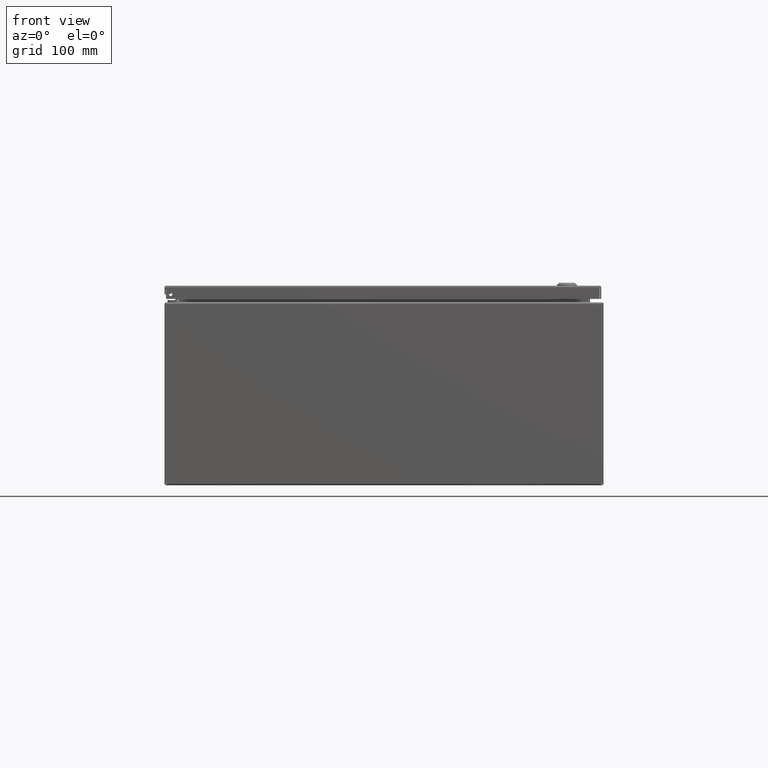
[diagram: clean part render]
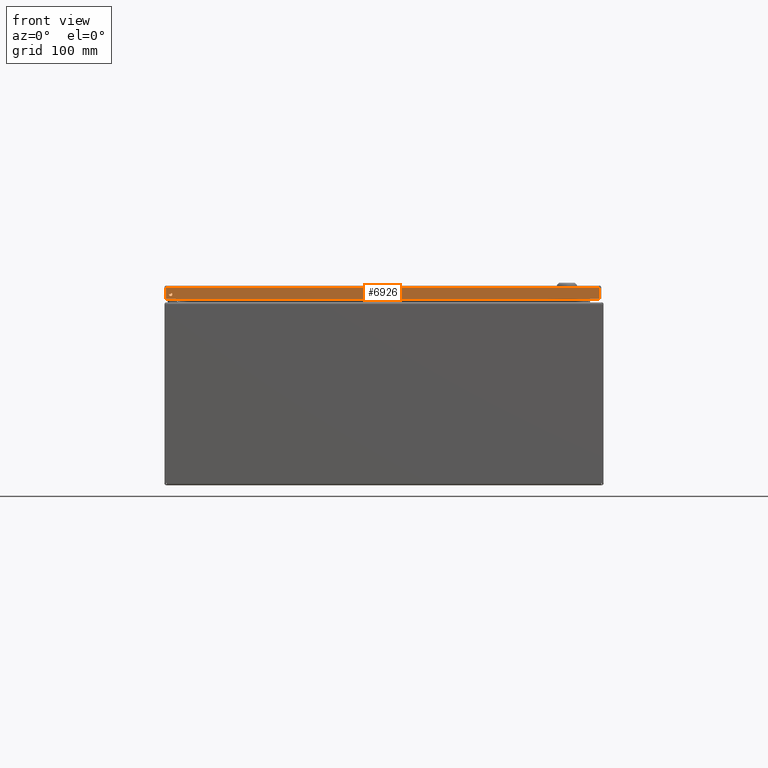
[diagram: same view with one face highlighted and labeled with its STEP entity id]
A machine part, front view. The second image highlights one B-rep face of the part: STEP entity #6926.
In plain terms, the highlighted planar face has unit normal (-0, 1, 0).
Its self-contained STEP definition (entity closure, byte-faithful):
#6494=CARTESIAN_POINT('',(23.633951456543986,5.892567E-017,0.479999999998429));
#6495=VERTEX_POINT('',#6494);
#6496=CARTESIAN_POINT('',(23.539951456543985,0.0,0.479999999998429));
#6497=DIRECTION('',(0.0,1.0,0.0));
#6498=DIRECTION('',(-1.0,0.0,0.0));
#6499=AXIS2_PLACEMENT_3D('',#6496,#6497,#6498);
#6500=CIRCLE('',#6499,0.094000000000000);
#6501=EDGE_CURVE('',#6495,#6495,#6500,.T.);
#6672=CARTESIAN_POINT('',(0.085048543456041,1.537712E-015,0.105250000000000));
#6673=VERTEX_POINT('',#6672);
#6674=CARTESIAN_POINT('',(23.789951456543960,1.537712E-015,0.105250000000000));
#6675=VERTEX_POINT('',#6674);
#6676=CARTESIAN_POINT('',(0.085048543456040,1.537479E-015,0.105250000000000));
#6677=DIRECTION('',(1.0,0.0,0.0));
#6678=VECTOR('',#6677,23.704902913087921);
#6679=LINE('',#6676,#6678);
#6680=EDGE_CURVE('',#6673,#6675,#6679,.T.);
#6761=CARTESIAN_POINT('',(23.789951456543960,1.638181E-015,0.730000000000000));
#6762=VERTEX_POINT('',#6761);
#6763=CARTESIAN_POINT('',(23.789951456543960,1.638181E-015,0.730000000000000));
#6764=DIRECTION('',(0.0,0.0,-1.0));
#6765=VECTOR('',#6764,0.624750000000000);
#6766=LINE('',#6763,#6765);
#6767=EDGE_CURVE('',#6762,#6675,#6766,.T.);
#6876=CARTESIAN_POINT('',(0.085048543456039,1.638181E-015,0.730000000000000));
#6877=VERTEX_POINT('',#6876);
#6878=CARTESIAN_POINT('',(0.085048543456039,1.537712E-015,0.105250000000000));
#6879=DIRECTION('',(0.0,0.0,1.0));
#6880=VECTOR('',#6879,0.624750000000000);
#6881=LINE('',#6878,#6880);
#6882=EDGE_CURVE('',#6673,#6877,#6881,.T.);
#6900=CARTESIAN_POINT('',(0.085048543456039,1.638181E-015,0.730000000000000));
#6901=DIRECTION('',(1.0,0.0,0.0));
#6902=VECTOR('',#6901,23.704902913087924);
#6903=LINE('',#6900,#6902);
#6904=EDGE_CURVE('',#6877,#6762,#6903,.T.);
#6912=CARTESIAN_POINT('',(11.937500000000000,1.581051E-015,0.374747570757023));
#6913=DIRECTION('',(0.0,1.0,0.0));
#6914=DIRECTION('',(1.0,0.0,0.0));
#6915=AXIS2_PLACEMENT_3D('',#6912,#6913,#6914);
#6916=PLANE('',#6915);
#6917=ORIENTED_EDGE('',*,*,#6680,.T.);
#6918=ORIENTED_EDGE('',*,*,#6767,.F.);
#6919=ORIENTED_EDGE('',*,*,#6904,.F.);
#6920=ORIENTED_EDGE('',*,*,#6882,.F.);
#6921=EDGE_LOOP('',(#6917,#6918,#6919,#6920));
#6922=FACE_OUTER_BOUND('',#6921,.T.);
#6923=ORIENTED_EDGE('',*,*,#6501,.T.);
#6924=EDGE_LOOP('',(#6923));
#6925=FACE_BOUND('',#6924,.T.);
#6926=ADVANCED_FACE('',(#6922,#6925),#6916,.F.);